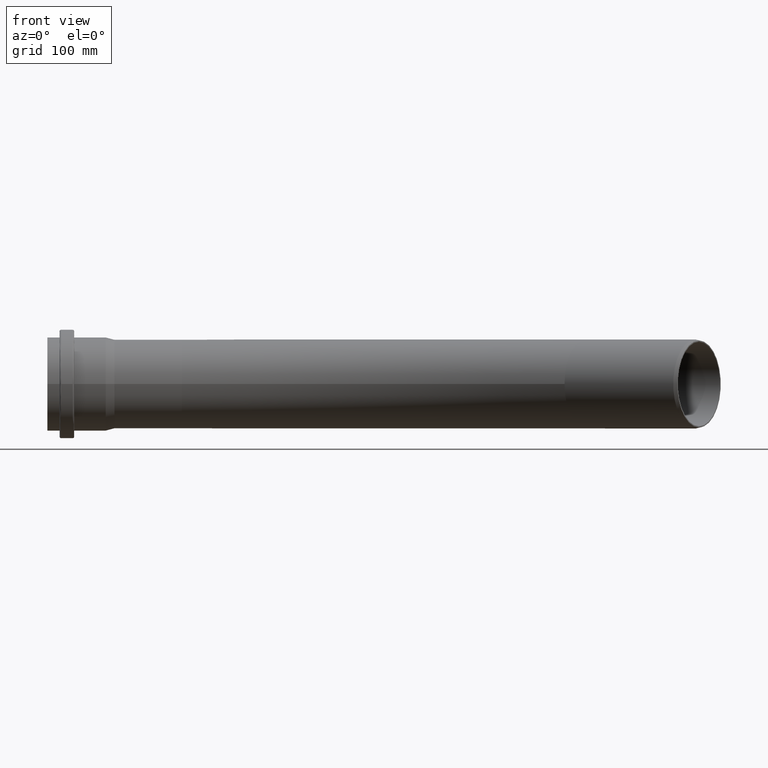
[diagram: clean part render]
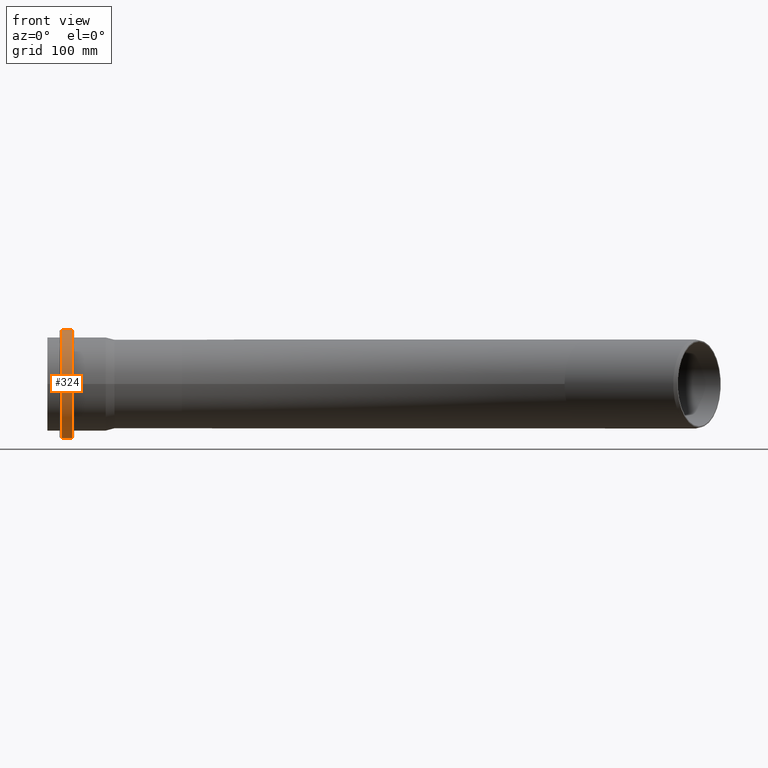
[diagram: same view with one face highlighted and labeled with its STEP entity id]
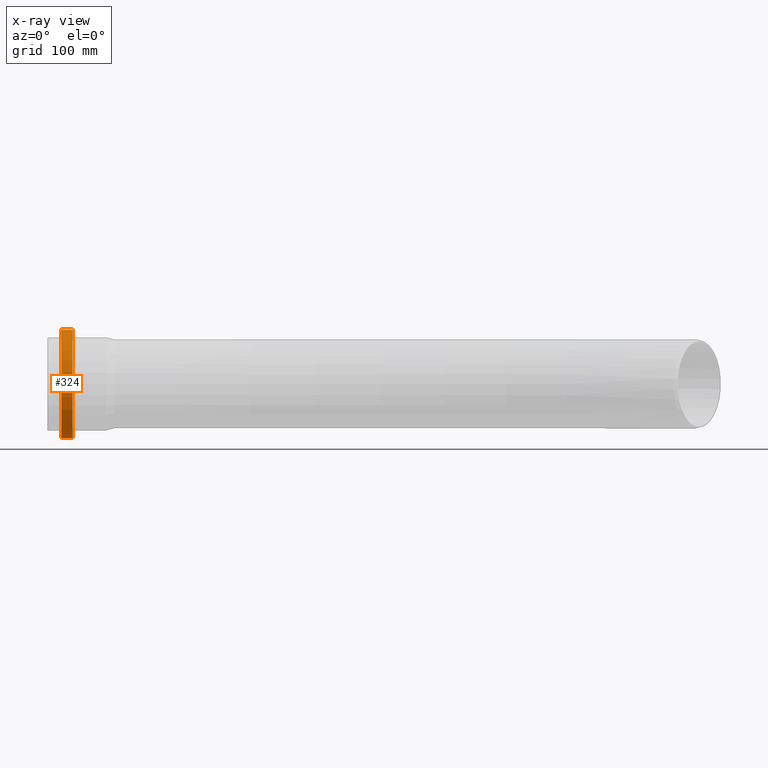
[diagram: x-ray of the same camera — body ghosted, the highlighted face saturated]
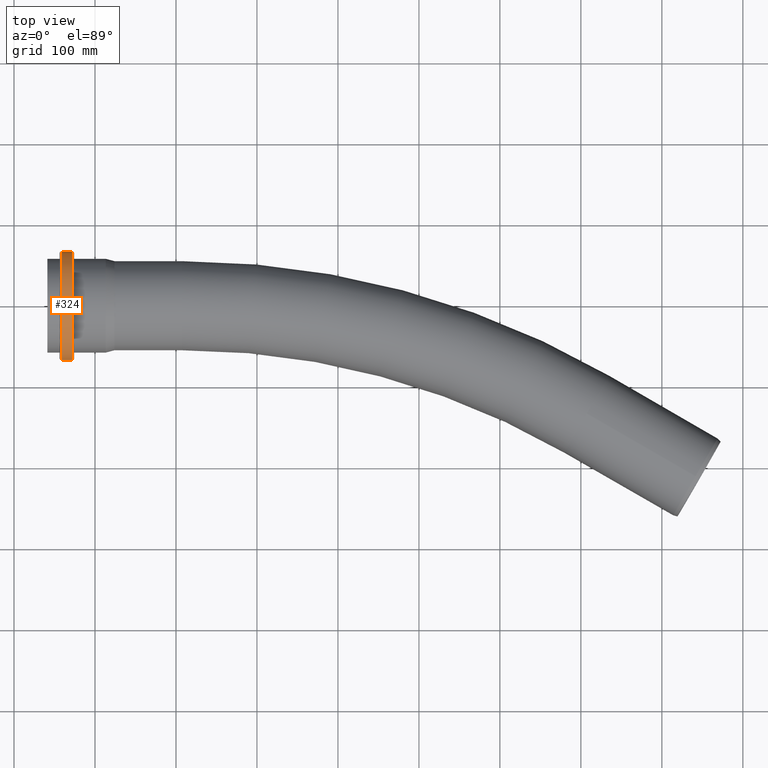
[diagram: same view with one face highlighted and labeled with its STEP entity id]
A machine part, front view. The second image highlights one B-rep face of the part: STEP entity #324.
The next image is the same camera in x-ray: the body ghosted, the highlighted face saturated — about 0% of this face is hidden behind the body in this view.
A second angle (top view) of the same face is appended — the face is thin or edge-on in the first view.
In plain terms, the highlighted cylindrical surface (bore or boss wall) has radius 67 mm, axis along (1, 0, 0).
Its self-contained STEP definition (entity closure, byte-faithful):
#33=CYLINDRICAL_SURFACE('',#386,67.);
#48=FACE_OUTER_BOUND('',#72,.T.);
#72=EDGE_LOOP('',(#257,#258,#259,#260,#261,#262));
#96=LINE('',#585,#109);
#109=VECTOR('',#471,67.);
#133=CIRCLE('',#384,67.);
#134=CIRCLE('',#385,67.);
#135=CIRCLE('',#387,67.);
#136=CIRCLE('',#388,67.);
#162=VERTEX_POINT('',#578);
#163=VERTEX_POINT('',#580);
#164=VERTEX_POINT('',#584);
#165=VERTEX_POINT('',#586);
#196=EDGE_CURVE('',#162,#163,#133,.T.);
#197=EDGE_CURVE('',#163,#162,#134,.T.);
#198=EDGE_CURVE('',#163,#164,#96,.T.);
#199=EDGE_CURVE('',#165,#164,#135,.T.);
#200=EDGE_CURVE('',#164,#165,#136,.T.);
#257=ORIENTED_EDGE('',*,*,#197,.F.);
#258=ORIENTED_EDGE('',*,*,#198,.T.);
#259=ORIENTED_EDGE('',*,*,#199,.F.);
#260=ORIENTED_EDGE('',*,*,#200,.F.);
#261=ORIENTED_EDGE('',*,*,#198,.F.);
#262=ORIENTED_EDGE('',*,*,#196,.F.);
#324=ADVANCED_FACE('',(#48),#33,.T.);
#384=AXIS2_PLACEMENT_3D('',#581,#465,#466);
#385=AXIS2_PLACEMENT_3D('',#582,#467,#468);
#386=AXIS2_PLACEMENT_3D('',#583,#469,#470);
#387=AXIS2_PLACEMENT_3D('',#587,#472,#473);
#388=AXIS2_PLACEMENT_3D('',#588,#474,#475);
#465=DIRECTION('center_axis',(1.,0.,0.));
#466=DIRECTION('ref_axis',(0.,-1.,1.83697019872103E-16));
#467=DIRECTION('center_axis',(1.,0.,0.));
#468=DIRECTION('ref_axis',(0.,-1.,1.83697019872103E-16));
#469=DIRECTION('center_axis',(1.,0.,0.));
#470=DIRECTION('ref_axis',(0.,1.,0.));
#471=DIRECTION('',(-1.,0.,0.));
#472=DIRECTION('center_axis',(-1.,0.,0.));
#473=DIRECTION('ref_axis',(0.,-1.,1.83697019872103E-16));
#474=DIRECTION('center_axis',(-1.,0.,0.));
#475=DIRECTION('ref_axis',(0.,-1.,1.83697019872103E-16));
#578=CARTESIAN_POINT('',(-127.725,-8.20513355428727E-15,67.));
#580=CARTESIAN_POINT('',(-127.725,-67.,-8.20513355428727E-15));
#581=CARTESIAN_POINT('Origin',(-127.725,0.,0.));
#582=CARTESIAN_POINT('Origin',(-127.725,0.,0.));
#583=CARTESIAN_POINT('Origin',(-134.725,0.,0.));
#584=CARTESIAN_POINT('',(-141.725,-67.,-8.20513355428727E-15));
#585=CARTESIAN_POINT('',(-134.725,-67.,-8.20513355428727E-15));
#586=CARTESIAN_POINT('',(-141.725,-8.20513355428727E-15,67.));
#587=CARTESIAN_POINT('Origin',(-141.725,0.,0.));
#588=CARTESIAN_POINT('Origin',(-141.725,0.,0.));